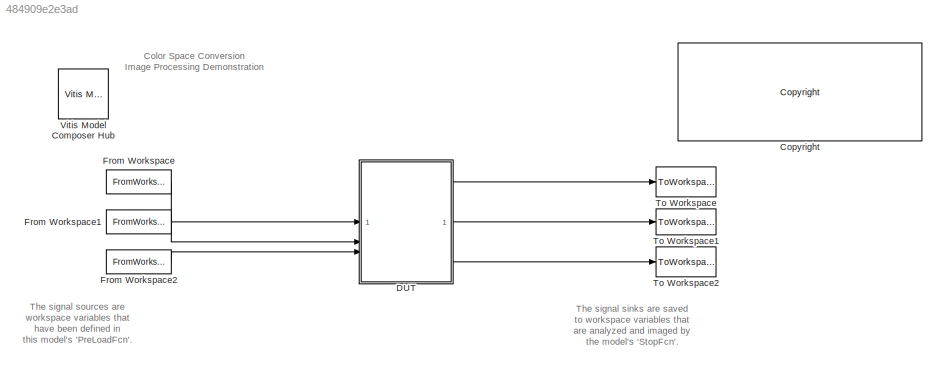
MODEL slx_484909e2e3ad
KIND model
CONFIG AbsTol = auto
CONFIG EnableMultiTasking = on
CONFIG FixedStep = auto
CONFIG MaxStep = auto
CONFIG MinStep = auto
CONFIG PreLoadFcn = load ColorConverter_imageData.mat\nColorConverter_PreLoadFcn
CONFIG RelTol = 1e-3
CONFIG SampleTimeConstraint = Unconstrained
CONFIG SolverName = ode45
CONFIG StartTime = 0.0
CONFIG StopFcn = ColorConverter_StopFcn
CONFIG StopTime = 64*64 + 14
BLOCK [Reference] <copyright redacted>
  SourceBlock = hdlUtilities/<copyright redacted>
  SourceType = Xilinx <copyright redacted>
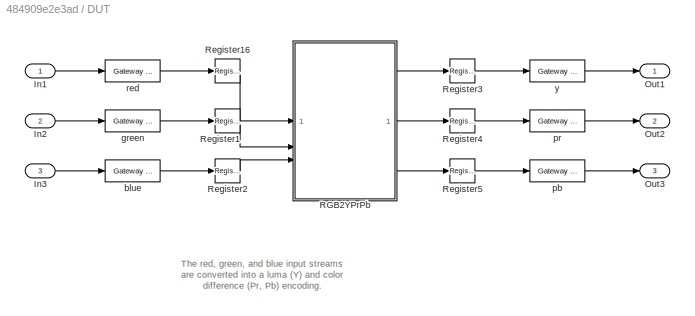
BLOCK [SubSystem] DUT
BLOCK [Inport] DUT/In1
BLOCK [Inport] DUT/In2
  Port = 2
BLOCK [Inport] DUT/In3
  Port = 3
BLOCK [Outport] DUT/Out1
BLOCK [Outport] DUT/Out2
  Port = 2
BLOCK [Outport] DUT/Out3
  Port = 3
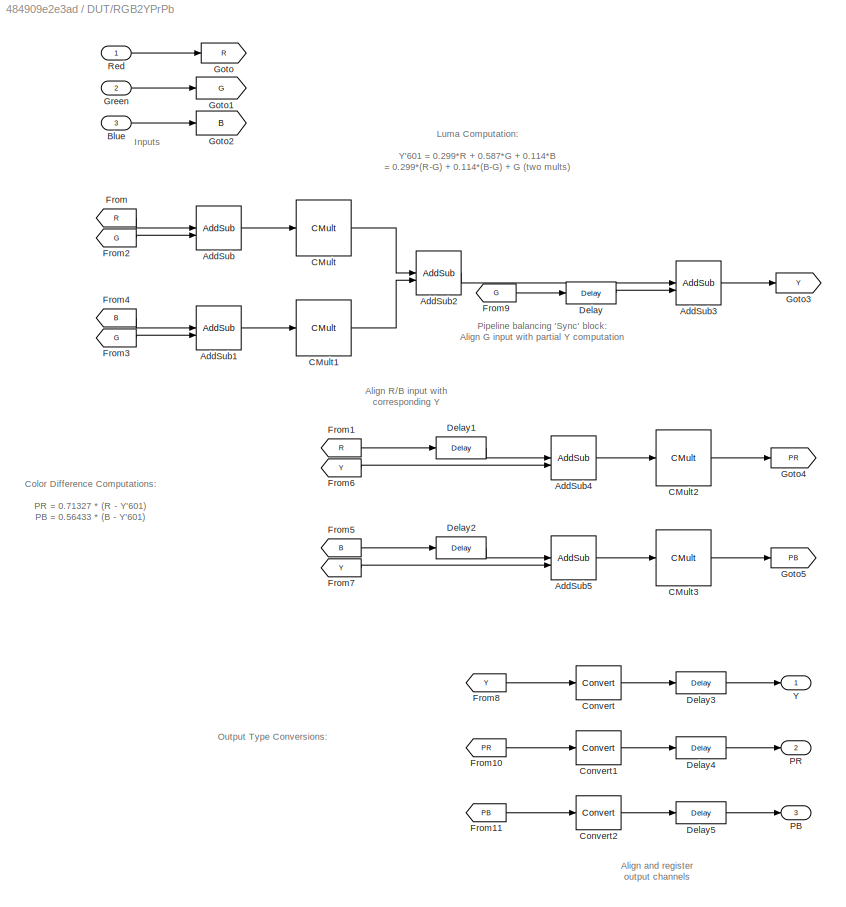
BLOCK [SubSystem] DUT/RGB2YPrPb
BLOCK [Reference] DUT/RGB2YPrPb/AddSub  REF=hdlBasic/AddSub
  SourceBlock = hdlBasic/AddSub
  SourceType = Adder/Subtracter Block
BLOCK [Reference] DUT/RGB2YPrPb/AddSub1  REF=hdlBasic/AddSub
  SourceBlock = hdlBasic/AddSub
  SourceType = Adder/Subtracter Block
BLOCK [Reference] DUT/RGB2YPrPb/AddSub2  REF=hdlBasic/AddSub
  SourceBlock = hdlBasic/AddSub
  SourceType = Adder/Subtracter Block
BLOCK [Reference] DUT/RGB2YPrPb/AddSub3  REF=hdlBasic/AddSub
  SourceBlock = hdlBasic/AddSub
  SourceType = Adder/Subtracter Block
BLOCK [Reference] DUT/RGB2YPrPb/AddSub4  REF=hdlBasic/AddSub
  SourceBlock = hdlBasic/AddSub
  SourceType = Adder/Subtracter Block
BLOCK [Reference] DUT/RGB2YPrPb/AddSub5  REF=hdlBasic/AddSub
  SourceBlock = hdlBasic/AddSub
  SourceType = Adder/Subtracter Block
BLOCK [Inport] DUT/RGB2YPrPb/Blue
  Port = 3
BLOCK [Reference] DUT/RGB2YPrPb/CMult  REF=hdlBasic/CMult
  SourceBlock = hdlBasic/CMult
  SourceType = Constant Multiplier Block
BLOCK [Reference] DUT/RGB2YPrPb/CMult1  REF=hdlBasic/CMult
  SourceBlock = hdlBasic/CMult
  SourceType = Constant Multiplier Block
BLOCK [Reference] DUT/RGB2YPrPb/CMult2  REF=hdlBasic/CMult
  SourceBlock = hdlBasic/CMult
  SourceType = Constant Multiplier Block
BLOCK [Reference] DUT/RGB2YPrPb/CMult3  REF=hdlBasic/CMult
  SourceBlock = hdlBasic/CMult
  SourceType = Constant Multiplier Block
BLOCK [Reference] DUT/RGB2YPrPb/Convert  REF=hdlBasic/Convert
  SourceBlock = hdlBasic/Convert
  SourceType = Type Converter Block
BLOCK [Reference] DUT/RGB2YPrPb/Convert1  REF=hdlBasic/Convert
  SourceBlock = hdlBasic/Convert
  SourceType = Type Converter Block
BLOCK [Reference] DUT/RGB2YPrPb/Convert2  REF=hdlBasic/Convert
  SourceBlock = hdlBasic/Convert
  SourceType = Type Converter Block
BLOCK [Reference] DUT/RGB2YPrPb/Delay  REF=hdlBasic/Delay
  SourceBlock = hdlBasic/Delay
  SourceType = Delay Block
BLOCK [Reference] DUT/RGB2YPrPb/Delay1  REF=hdlBasic/Delay
  SourceBlock = hdlBasic/Delay
  SourceType = Delay Block
BLOCK [Reference] DUT/RGB2YPrPb/Delay2  REF=hdlBasic/Delay
  SourceBlock = hdlBasic/Delay
  SourceType = Delay Block
BLOCK [Reference] DUT/RGB2YPrPb/Delay3  REF=hdlBasic/Delay
  SourceBlock = hdlBasic/Delay
  SourceType = Delay Block
BLOCK [Reference] DUT/RGB2YPrPb/Delay4  REF=hdlBasic/Delay
  SourceBlock = hdlBasic/Delay
  SourceType = Delay Block
BLOCK [Reference] DUT/RGB2YPrPb/Delay5  REF=hdlBasic/Delay
  SourceBlock = hdlBasic/Delay
  SourceType = Delay Block
BLOCK [From] DUT/RGB2YPrPb/From
  CloseFcn = tagdialog Close
  GotoTag = R
BLOCK [From] DUT/RGB2YPrPb/From1
  CloseFcn = tagdialog Close
  GotoTag = R
BLOCK [From] DUT/RGB2YPrPb/From10
  CloseFcn = tagdialog Close
  GotoTag = PR
BLOCK [From] DUT/RGB2YPrPb/From11
  CloseFcn = tagdialog Close
  GotoTag = PB
BLOCK [From] DUT/RGB2YPrPb/From2
  CloseFcn = tagdialog Close
  GotoTag = G
BLOCK [From] DUT/RGB2YPrPb/From3
  CloseFcn = tagdialog Close
  GotoTag = G
BLOCK [From] DUT/RGB2YPrPb/From4
  CloseFcn = tagdialog Close
  GotoTag = B
BLOCK [From] DUT/RGB2YPrPb/From5
  CloseFcn = tagdialog Close
  GotoTag = B
BLOCK [From] DUT/RGB2YPrPb/From6
  CloseFcn = tagdialog Close
  GotoTag = Y
BLOCK [From] DUT/RGB2YPrPb/From7
  CloseFcn = tagdialog Close
  GotoTag = Y
BLOCK [From] DUT/RGB2YPrPb/From8
  CloseFcn = tagdialog Close
  GotoTag = Y
BLOCK [From] DUT/RGB2YPrPb/From9
  CloseFcn = tagdialog Close
  GotoTag = G
BLOCK [Goto] DUT/RGB2YPrPb/Goto
  GotoTag = R
BLOCK [Goto] DUT/RGB2YPrPb/Goto1
  GotoTag = G
BLOCK [Goto] DUT/RGB2YPrPb/Goto2
  GotoTag = B
BLOCK [Goto] DUT/RGB2YPrPb/Goto3
  GotoTag = Y
BLOCK [Goto] DUT/RGB2YPrPb/Goto4
  GotoTag = PR
BLOCK [Goto] DUT/RGB2YPrPb/Goto5
  GotoTag = PB
BLOCK [Inport] DUT/RGB2YPrPb/Green
  Port = 2
BLOCK [Outport] DUT/RGB2YPrPb/PB
  Port = 3
  VectorParamsAs1DForOutWhenUnconnected = off
BLOCK [Outport] DUT/RGB2YPrPb/PR
  Port = 2
  VectorParamsAs1DForOutWhenUnconnected = off
BLOCK [Inport] DUT/RGB2YPrPb/Red
BLOCK [Outport] DUT/RGB2YPrPb/Y
  VectorParamsAs1DForOutWhenUnconnected = off
BLOCK [Reference] DUT/Register1  REF=hdlBasic/Register
  SourceBlock = hdlBasic/Register
  SourceType = Register Block
BLOCK [Reference] DUT/Register16  REF=hdlBasic/Register
  SourceBlock = hdlBasic/Register
  SourceType = Register Block
BLOCK [Reference] DUT/Register2  REF=hdlBasic/Register
  SourceBlock = hdlBasic/Register
  SourceType = Register Block
BLOCK [Reference] DUT/Register3  REF=hdlBasic/Register
  SourceBlock = hdlBasic/Register
  SourceType = Register Block
BLOCK [Reference] DUT/Register4  REF=hdlBasic/Register
  SourceBlock = hdlBasic/Register
  SourceType = Register Block
BLOCK [Reference] DUT/Register5  REF=hdlBasic/Register
  SourceBlock = hdlBasic/Register
  SourceType = Register Block
BLOCK [Reference] DUT/blue  REF=hdlBasic/Gateway In
  SourceBlock = hdlBasic/Gateway In
  SourceType = Gateway In Block
BLOCK [Reference] DUT/green  REF=hdlBasic/Gateway In
  SourceBlock = hdlBasic/Gateway In
  SourceType = Gateway In Block
BLOCK [Reference] DUT/pb  REF=hdlBasic/Gateway Out
  SourceBlock = hdlBasic/Gateway Out
  SourceType = Gateway Out Block
BLOCK [Reference] DUT/pr  REF=hdlBasic/Gateway Out
  SourceBlock = hdlBasic/Gateway Out
  SourceType = Gateway Out Block
BLOCK [Reference] DUT/red  REF=hdlBasic/Gateway In
  SourceBlock = hdlBasic/Gateway In
  SourceType = Gateway In Block
BLOCK [Reference] DUT/y  REF=hdlBasic/Gateway Out
  SourceBlock = hdlBasic/Gateway Out
  SourceType = Gateway Out Block
BLOCK [FromWorkspace] From Workspace
  Interpolate = off
  OutputAfterFinalValue = Setting to zero
  SampleTime = 1
  VariableName = redSignal
  ZeroCross = off
BLOCK [FromWorkspace] From Workspace1
  Interpolate = off
  OutputAfterFinalValue = Setting to zero
  SampleTime = 1
  VariableName = greenSignal
  ZeroCross = off
BLOCK [FromWorkspace] From Workspace2
  Interpolate = off
  OutputAfterFinalValue = Setting to zero
  SampleTime = 1
  VariableName = blueSignal
  ZeroCross = off
BLOCK [ToWorkspace] To Workspace
  MaxDataPoints = inf
  SampleTime = 1
  VariableName = ySignal
BLOCK [ToWorkspace] To Workspace1
  MaxDataPoints = inf
  SampleTime = 1
  VariableName = prSignal
BLOCK [ToWorkspace] To Workspace2
  MaxDataPoints = inf
  SampleTime = 1
  VariableName = pbSignal
BLOCK [Reference] Vitis Model Composer Hub  REF=vmcUtilities/Vitis Model Composer Hub
  SourceBlock = vmcUtilities/Vitis Model Composer Hub
  SourceType = VMC Hub
  Tag = genX
  UserDataPersistent = on
ANNOTATION (root): Color Space Conversion Image Processing Demonstration
ANNOTATION (root): The signal sinks are saved to workspace variables that are analyzed and imaged by the model's 'StopFcn'.
ANNOTATION (root): The signal sources are workspace variables that have been defined in this model's 'PreLoadFcn'.
ANNOTATION DUT: The red, green, and blue input streams are converted into a luma (Y) and color difference (Pr, Pb) encoding.
ANNOTATION DUT/RGB2YPrPb: Color Difference Computations: PR = 0.71327 * (R - Y'601) PB = 0.56433 * (B - Y'601)
ANNOTATION DUT/RGB2YPrPb: Luma Computation: Y'601 = 0.299*R + 0.587*G + 0.114*B = 0.299*(R-G) + 0.114*(B-G) + G (two mults)
ANNOTATION DUT/RGB2YPrPb: Align R/B input with corresponding Y
ANNOTATION DUT/RGB2YPrPb: Align and register output channels
ANNOTATION DUT/RGB2YPrPb: Inputs
ANNOTATION DUT/RGB2YPrPb: Output Type Conversions:
ANNOTATION DUT/RGB2YPrPb: Pipeline balancing 'Sync' block: Align G input with partial Y computation
LINE DUT/In1:1 -> DUT/red:1
LINE DUT/In2:1 -> DUT/green:1
LINE DUT/In3:1 -> DUT/blue:1
LINE DUT/RGB2YPrPb/AddSub1:1 -> DUT/RGB2YPrPb/CMult1:1
LINE DUT/RGB2YPrPb/AddSub2:1 -> DUT/RGB2YPrPb/AddSub3:1
LINE DUT/RGB2YPrPb/AddSub3:1 -> DUT/RGB2YPrPb/Goto3:1
LINE DUT/RGB2YPrPb/AddSub4:1 -> DUT/RGB2YPrPb/CMult2:1
LINE DUT/RGB2YPrPb/AddSub5:1 -> DUT/RGB2YPrPb/CMult3:1
LINE DUT/RGB2YPrPb/AddSub:1 -> DUT/RGB2YPrPb/CMult:1
LINE DUT/RGB2YPrPb/Blue:1 -> DUT/RGB2YPrPb/Goto2:1
LINE DUT/RGB2YPrPb/CMult1:1 -> DUT/RGB2YPrPb/AddSub2:2
LINE DUT/RGB2YPrPb/CMult2:1 -> DUT/RGB2YPrPb/Goto4:1
LINE DUT/RGB2YPrPb/CMult3:1 -> DUT/RGB2YPrPb/Goto5:1
LINE DUT/RGB2YPrPb/CMult:1 -> DUT/RGB2YPrPb/AddSub2:1
LINE DUT/RGB2YPrPb/Convert1:1 -> DUT/RGB2YPrPb/Delay4:1
LINE DUT/RGB2YPrPb/Convert2:1 -> DUT/RGB2YPrPb/Delay5:1
LINE DUT/RGB2YPrPb/Convert:1 -> DUT/RGB2YPrPb/Delay3:1
LINE DUT/RGB2YPrPb/Delay1:1 -> DUT/RGB2YPrPb/AddSub4:1
LINE DUT/RGB2YPrPb/Delay2:1 -> DUT/RGB2YPrPb/AddSub5:1
LINE DUT/RGB2YPrPb/Delay3:1 -> DUT/RGB2YPrPb/Y:1
LINE DUT/RGB2YPrPb/Delay4:1 -> DUT/RGB2YPrPb/PR:1
LINE DUT/RGB2YPrPb/Delay5:1 -> DUT/RGB2YPrPb/PB:1
LINE DUT/RGB2YPrPb/Delay:1 -> DUT/RGB2YPrPb/AddSub3:2
LINE DUT/RGB2YPrPb/From10:1 -> DUT/RGB2YPrPb/Convert1:1
LINE DUT/RGB2YPrPb/From11:1 -> DUT/RGB2YPrPb/Convert2:1
LINE DUT/RGB2YPrPb/From1:1 -> DUT/RGB2YPrPb/Delay1:1
LINE DUT/RGB2YPrPb/From2:1 -> DUT/RGB2YPrPb/AddSub:2
LINE DUT/RGB2YPrPb/From3:1 -> DUT/RGB2YPrPb/AddSub1:2
LINE DUT/RGB2YPrPb/From4:1 -> DUT/RGB2YPrPb/AddSub1:1
LINE DUT/RGB2YPrPb/From5:1 -> DUT/RGB2YPrPb/Delay2:1
LINE DUT/RGB2YPrPb/From6:1 -> DUT/RGB2YPrPb/AddSub4:2
LINE DUT/RGB2YPrPb/From7:1 -> DUT/RGB2YPrPb/AddSub5:2
LINE DUT/RGB2YPrPb/From8:1 -> DUT/RGB2YPrPb/Convert:1
LINE DUT/RGB2YPrPb/From9:1 -> DUT/RGB2YPrPb/Delay:1
LINE DUT/RGB2YPrPb/From:1 -> DUT/RGB2YPrPb/AddSub:1
LINE DUT/RGB2YPrPb/Green:1 -> DUT/RGB2YPrPb/Goto1:1
LINE DUT/RGB2YPrPb/Red:1 -> DUT/RGB2YPrPb/Goto:1
LINE DUT/RGB2YPrPb:1 -> DUT/Register3:1
LINE DUT/RGB2YPrPb:2 -> DUT/Register4:1
LINE DUT/RGB2YPrPb:3 -> DUT/Register5:1
LINE DUT/Register16:1 -> DUT/RGB2YPrPb:1
LINE DUT/Register1:1 -> DUT/RGB2YPrPb:2
LINE DUT/Register2:1 -> DUT/RGB2YPrPb:3
LINE DUT/Register3:1 -> DUT/y:1
LINE DUT/Register4:1 -> DUT/pr:1
LINE DUT/Register5:1 -> DUT/pb:1
LINE DUT/blue:1 -> DUT/Register2:1
LINE DUT/green:1 -> DUT/Register1:1
LINE DUT/pb:1 -> DUT/Out3:1
LINE DUT/pr:1 -> DUT/Out2:1
LINE DUT/red:1 -> DUT/Register16:1
LINE DUT/y:1 -> DUT/Out1:1
LINE DUT:1 -> To Workspace:1
LINE DUT:2 -> To Workspace1:1
LINE DUT:3 -> To Workspace2:1
LINE From Workspace1:1 -> DUT:2
LINE From Workspace2:1 -> DUT:3
LINE From Workspace:1 -> DUT:1
